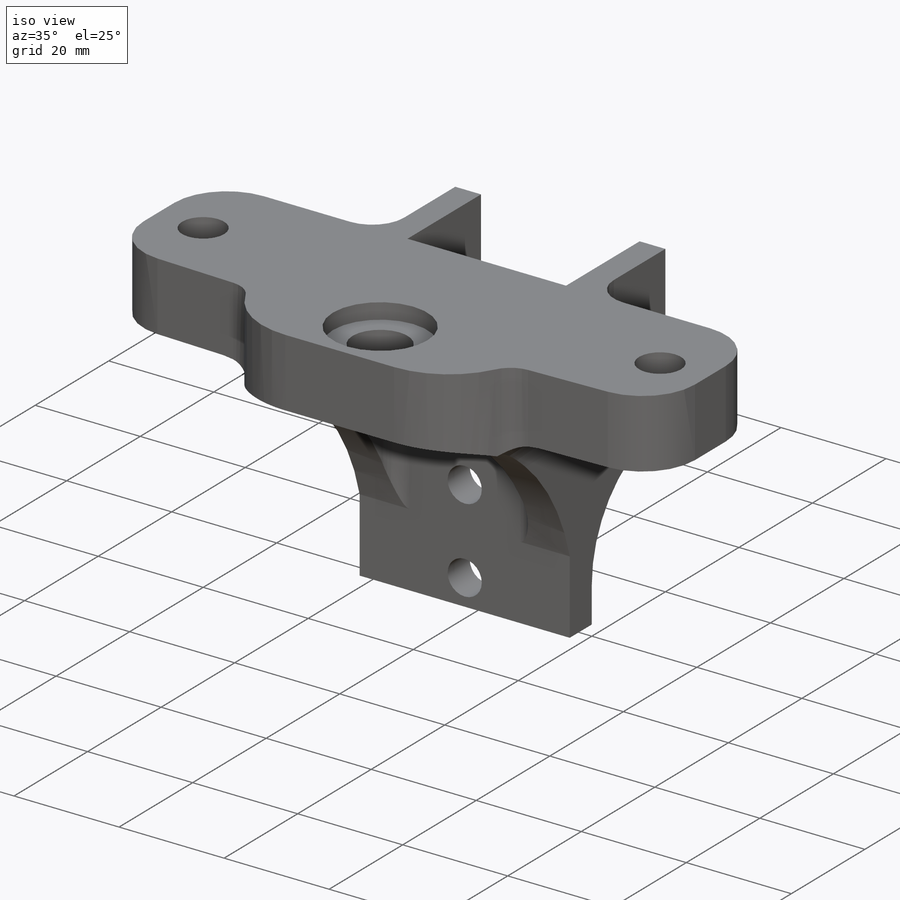
[diagram: iso view]
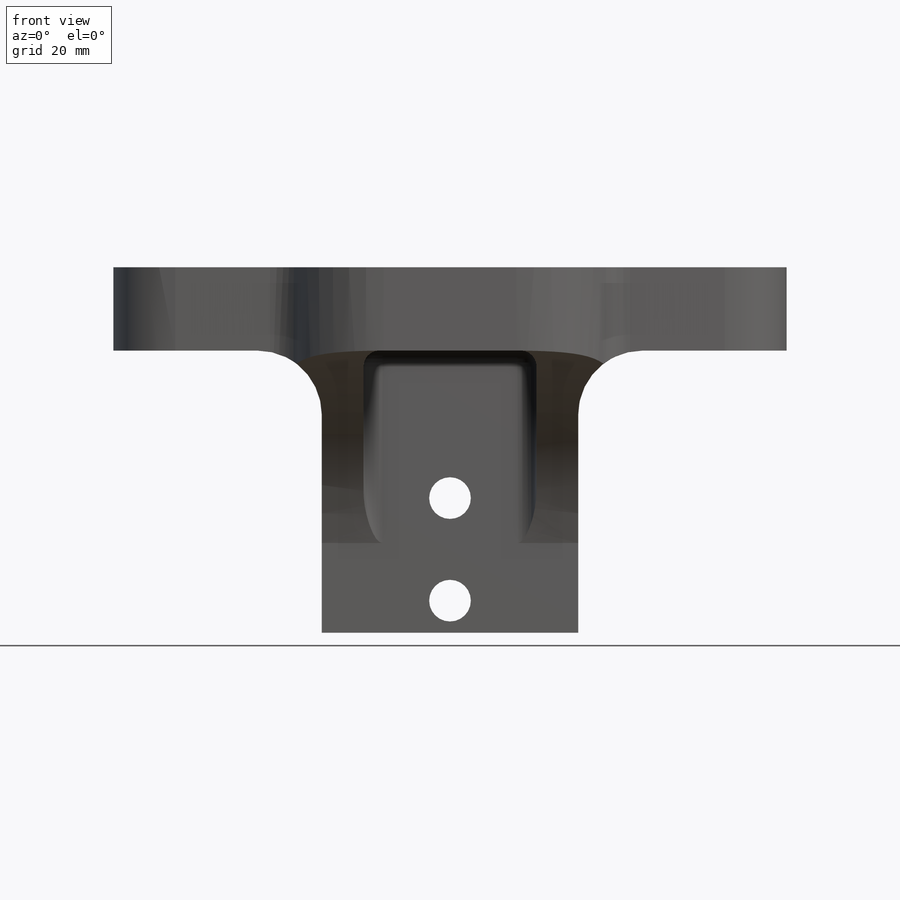
[diagram: front view]
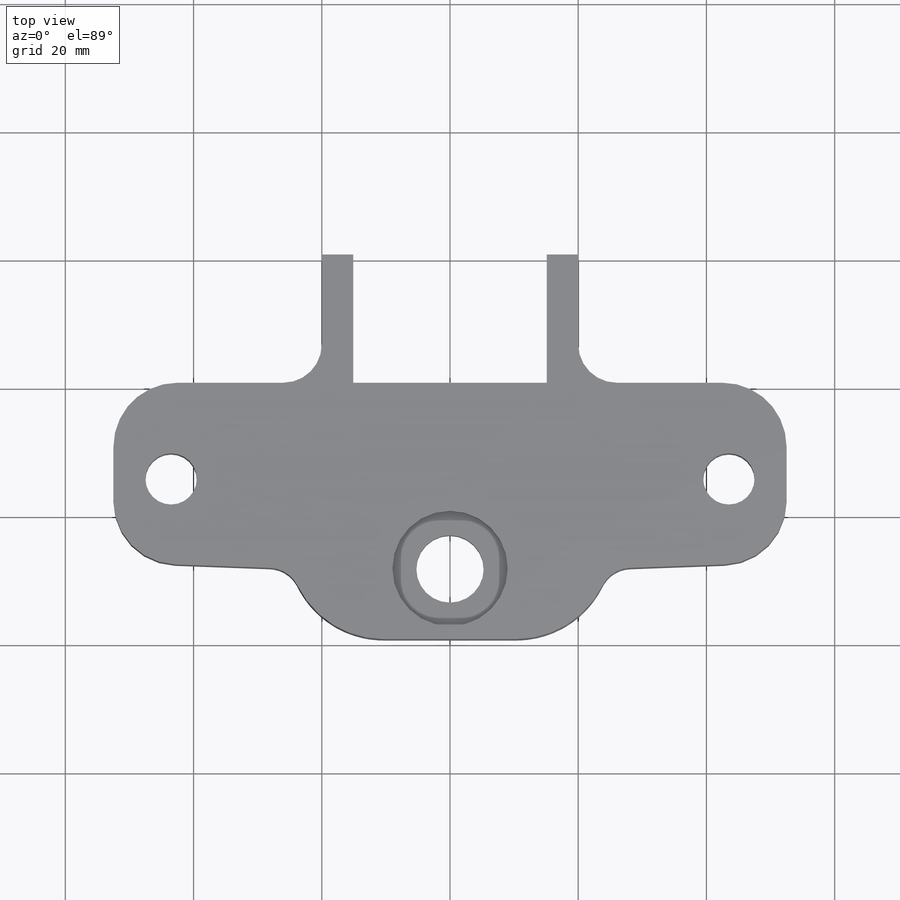
[diagram: top view]
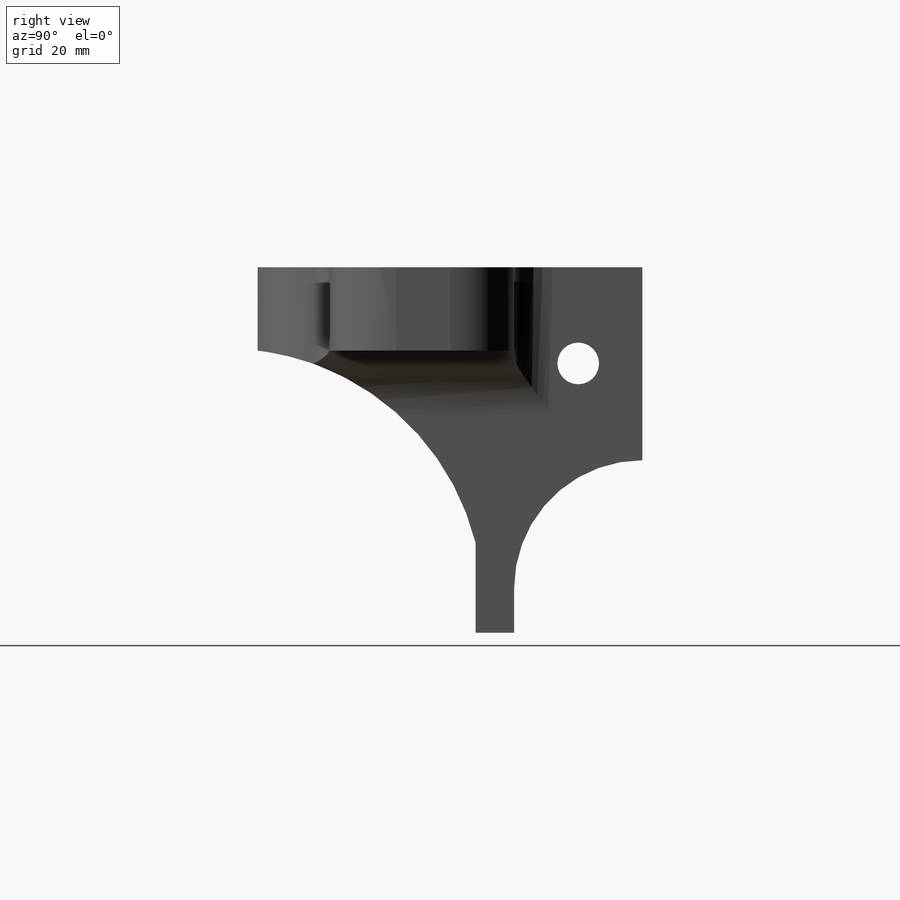
[diagram: right view]
SOLIDWORKS PART (.sldprt)
format: sldprt  version: not decoded by parser v0  size: 581,632 bytes
history: native  units: mm
features: sketch x16, extrude x8, fillet x8, cut_extrude x4, hole x2, material x1 (+12 scaffold rows collapsed)
feature tree (51):
  scaffold x12  (default folders/planes/origin — collapsed)
  material  "ABS PC"
  sketch  "Sketch1"  dims[D1=40.0mm D2=40.0mm]
  extrude  "Boss-Extrude1"  Depth=13mm
  sketch  "Sketch2"  dims[D1=18.0mm D2=20.0mm D3=29.0mm]
  cut_extrude  "Cut-Extrude1"  Depth=3mm
  sketch  "Sketch3"  dims[D1=10.5mm D2=4.0mm D3=4.0mm D4=16.0mm D5=16.0mm]
  cut_extrude  "Cut-Extrude2"  [1 undecoded]
  sketch  "Sketch27"  dims[D1=28.0mm D2=13.0mm]
  extrude  "Boss-Extrude12"  Depth=32.5mm
  sketch  "Sketch35"  dims[D1=6.0mm]
  extrude  "Boss-Extrude14"  Depth=44mm
  hole  "Ø6.5 (6.5) Diameter Hole1"  Diameter=6.5mm Depth=6.00005mm
  sketch  "Sketch37"  dims[D1=20.0mm D2=5.0mm D3=23.0mm]
  sketch  "Sketch36"  dims[hole-wizard template sketch: 59 standard entries collapsed; hole parameters kept: c18.Thru Hole Dia.=6.5mm c18.Thru Hole Depth=~6.00005mm]
  sketch  "Sketch41"  dims[D1=4.9mm D2=4.9mm D3=30.1mm D4=30.1mm]
  extrude  "Boss-Extrude18"  Depth=20mm
  fillet  "Fillet4"  Radius=20mm
  hole  "Ø6.5 (6.5) Diameter Hole2"  Diameter=6.5mm Depth=40.00005mm
  sketch  "Sketch43"  dims[D1=10.0mm D2=15.0mm]
  sketch  "Sketch42"  dims[hole-wizard template sketch: 59 standard entries collapsed; hole parameters kept: c18.Thru Hole Dia.=6.5mm c18.Thru Hole Depth=~40.00005mm]
  sketch  "Sketch44"  dims[D1=28.0mm D2=13.0mm]
  extrude  "Boss-Extrude19"  Depth=32.5mm
  sketch  "Sketch28"  dims[c1.D4=~9.173158mm c1.D6=~9.173158mm c1.D7=8.0mm c1.D1=8.4mm c1.D2=5.2mm c1.D3=4.2mm c2.D4=6.0mm c2.D5=15.0mm c2.D6=32.5mm c2.D8=~35.387145mm c2.D9=~30.281951mm c2.D10=~30.281951mm c3.D9=~30.281951mm c3.D6=43.5mm c3.D8=~19.525624mm c4.D9=~8.657611mm c4.D10=~15.205402mm c4.D5=15.0mm c4.D1=43.5mm]
  cut_extrude  "Cut-Extrude5"  [1 undecoded]
  sketch  "Sketch45"  dims[D1=18.0mm]
  cut_extrude  "Cut-Extrude6"  Depth=3mm
  sketch  "Sketch46"  dims[D2=40.0mm D1=30.0mm]
  extrude  "Boss-Extrude20"  Depth=6.5mm
  sketch  "Sketch47"  dims[D2=40.0mm D1=30.0mm]
  extrude  "Boss-Extrude21"  Depth=6.5mm
  sketch  "Sketch48"  dims[D1=1.0mm D2=5.0mm D3=5.0mm]
  extrude  "Boss-Extrude22"  Depth=13mm
  fillet  "Fillet5"  Radius=6mm
  fillet  "Fillet8"  Radius=10mm
  fillet  "Fillet10"  Radius=10mm
  fillet  "Fillet12"  Radius=3mm
  fillet  "Fillet13"  Radius=15mm
  fillet  "Fillet14"  Radius=5mm
  fillet  "Fillet15"  Radius=2.5mm
decode coverage: 36 of 38 modeling features carry decoded parameters
note: ~ marks probable driven/reference dimensions
note: 2 parameter values undecoded
note: suppression state not decoded; provenance and decode notes live in map.json
